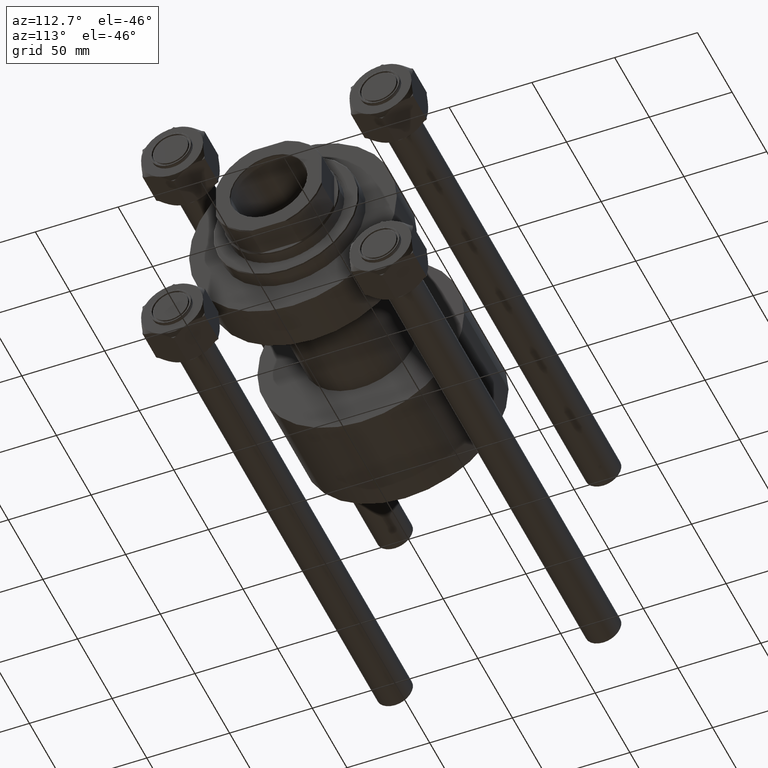
[diagram: clean part render]
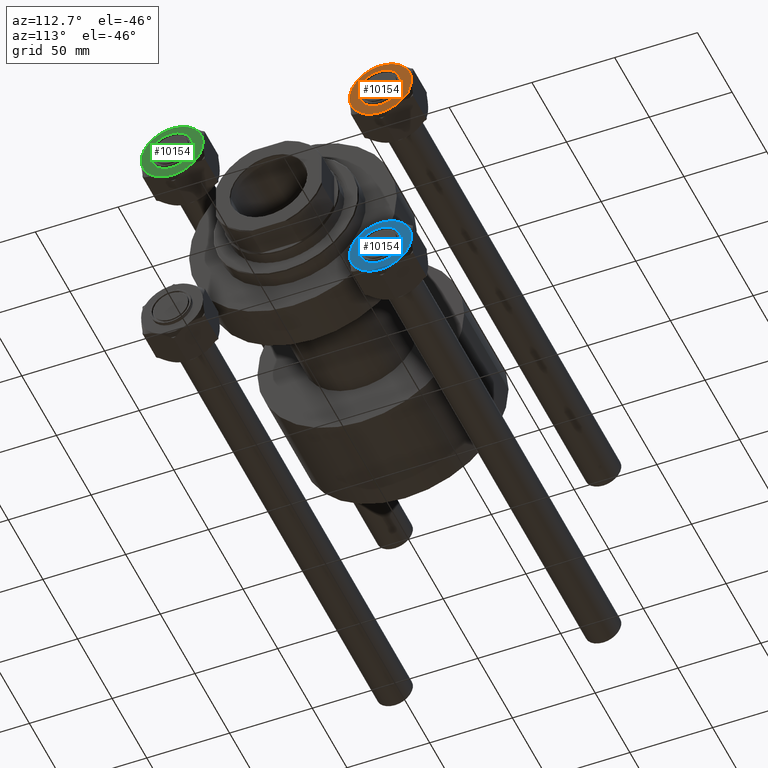
[diagram: same view with three faces highlighted in distinct colors, each labeled with its STEP entity id]
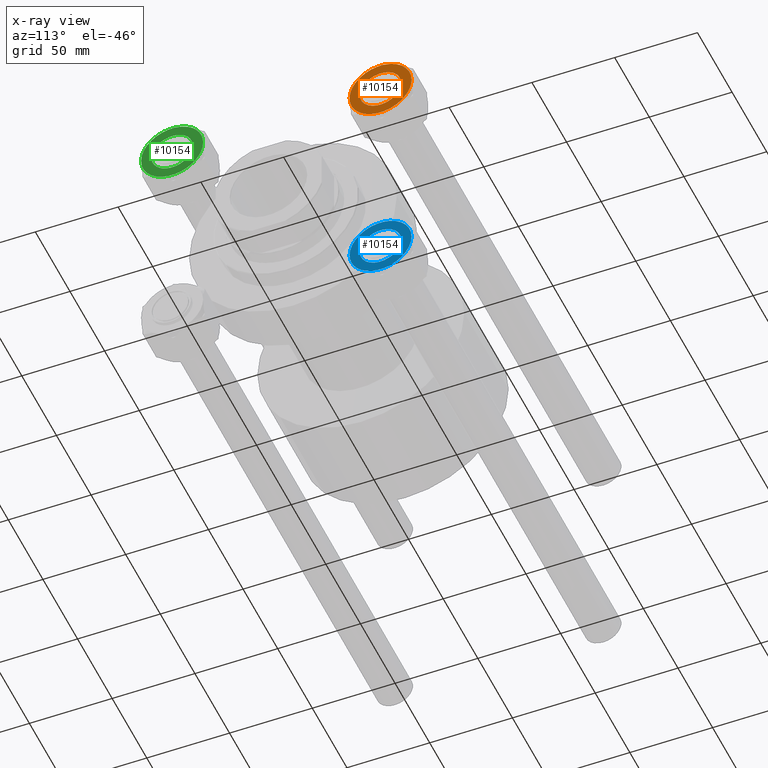
[diagram: x-ray of the same camera — body ghosted, the three highlighted faces saturated]
A machine part, auxiliary view with three faces highlighted in distinct colors.
The next image is the same camera in x-ray (body ghosted, the three faces saturated) — at least one of them is partly hidden behind the body in this view.
Their STEP definitions:

[orange] entity #10154 — the highlighted planar face has unit normal (-1, 0, 0).
#877 = CARTESIAN_POINT ( 'NONE',  ( 0.000000000000000000, 0.000000000000000000, 0.000000000000000000 ) ) ;
#1263 = EDGE_CURVE ( 'NONE', #3469, #21118, #34073, .T. ) ;
#1433 = CIRCLE ( 'NONE', #7959, 12.50000000000000000 ) ;
#1690 = CARTESIAN_POINT ( 'NONE',  ( 16.21499999999998920, 9.361734614909789087, 0.000000000000000000 ) ) ;
#2968 = AXIS2_PLACEMENT_3D ( 'NONE', #877, #24531, #4944 ) ;
#3469 = VERTEX_POINT ( 'NONE', #1690 ) ;
#4842 = EDGE_CURVE ( 'NONE', #11586, #34669, #24452, .T. ) ;
#4944 = DIRECTION ( 'NONE',  ( -1.000000000000000000, 0.000000000000000000, 0.000000000000000000 ) ) ;
#5284 = CIRCLE ( 'NONE', #36156, 18.72346922981956041 ) ;
#5495 = DIRECTION ( 'NONE',  ( 0.000000000000000000, -0.000000000000000000, -1.000000000000000000 ) ) ;
#6536 = VERTEX_POINT ( 'NONE', #19811 ) ;
#7544 = AXIS2_PLACEMENT_3D ( 'NONE', #37399, #9668, #40942 ) ;
#7959 = AXIS2_PLACEMENT_3D ( 'NONE', #48858, #29807, #45303 ) ;
#8434 = DIRECTION ( 'NONE',  ( 0.000000000000000000, -0.000000000000000000, -1.000000000000000000 ) ) ;
#8527 = ORIENTED_EDGE ( 'NONE', *, *, #1263, .T. ) ;
#8643 = CARTESIAN_POINT ( 'NONE',  ( 16.21500000000000341, -9.361734614909767771, 0.000000000000000000 ) ) ;
#8710 = AXIS2_PLACEMENT_3D ( 'NONE', #42723, #5495, #35363 ) ;
#8754 = EDGE_CURVE ( 'NONE', #20239, #39843, #35132, .T. ) ;
#9384 = EDGE_CURVE ( 'NONE', #34669, #32379, #44059, .T. ) ;
#9456 = CIRCLE ( 'NONE', #2968, 18.72346922981956041 ) ;
#9642 = EDGE_LOOP ( 'NONE', ( #26492, #35241 ) ) ;
#9668 = DIRECTION ( 'NONE',  ( 0.000000000000000000, -0.000000000000000000, -1.000000000000000000 ) ) ;
#10154 = ADVANCED_FACE ( 'NONE', ( #28522, #47083 ), #39469, .F. ) ;
#11468 = AXIS2_PLACEMENT_3D ( 'NONE', #21029, #46372, #15363 ) ;
#11586 = VERTEX_POINT ( 'NONE', #28429 ) ;
#12672 = CARTESIAN_POINT ( 'NONE',  ( -16.21499999999999275, -9.361734614909785535, 0.000000000000000000 ) ) ;
#13321 = EDGE_CURVE ( 'NONE', #3469, #6536, #48987, .T. ) ;
#15363 = DIRECTION ( 'NONE',  ( -1.000000000000000000, 0.000000000000000000, 0.000000000000000000 ) ) ;
#17994 = DIRECTION ( 'NONE',  ( 0.000000000000000000, 0.000000000000000000, 1.000000000000000000 ) ) ;
#19249 = DIRECTION ( 'NONE',  ( 1.000000000000000000, 0.000000000000000000, 0.000000000000000000 ) ) ;
#19811 = CARTESIAN_POINT ( 'NONE',  ( 18.72346922981956041, 0.000000000000000000, 0.000000000000000000 ) ) ;
#20239 = VERTEX_POINT ( 'NONE', #26939 ) ;
#20646 = EDGE_CURVE ( 'NONE', #32379, #21118, #5284, .T. ) ;
#20996 = ORIENTED_EDGE ( 'NONE', *, *, #20646, .F. ) ;
#21029 = CARTESIAN_POINT ( 'NONE',  ( 0.000000000000000000, 0.000000000000000000, 0.000000000000000000 ) ) ;
#21118 = VERTEX_POINT ( 'NONE', #29550 ) ;
#22572 = EDGE_LOOP ( 'NONE', ( #20996, #31131, #37670, #25218, #34127, #29165, #8527 ) ) ;
#24303 = EDGE_CURVE ( 'NONE', #45589, #11586, #9456, .T. ) ;
#24452 = CIRCLE ( 'NONE', #11468, 18.72346922981956041 ) ;
#24531 = DIRECTION ( 'NONE',  ( 0.000000000000000000, -0.000000000000000000, -1.000000000000000000 ) ) ;
#24824 = EDGE_CURVE ( 'NONE', #6536, #45589, #48460, .T. ) ;
#25218 = ORIENTED_EDGE ( 'NONE', *, *, #24303, .F. ) ;
#26137 = DIRECTION ( 'NONE',  ( 1.000000000000000000, 0.000000000000000000, 0.000000000000000000 ) ) ;
#26197 = AXIS2_PLACEMENT_3D ( 'NONE', #44673, #17994, #26137 ) ;
#26492 = ORIENTED_EDGE ( 'NONE', *, *, #28194, .F. ) ;
#26939 = CARTESIAN_POINT ( 'NONE',  ( 12.50000000000000000, 1.530808498934191521E-15, 0.000000000000000000 ) ) ;
#27046 = AXIS2_PLACEMENT_3D ( 'NONE', #39711, #43017, #44010 ) ;
#27389 = DIRECTION ( 'NONE',  ( 0.000000000000000000, 0.000000000000000000, 1.000000000000000000 ) ) ;
#28194 = EDGE_CURVE ( 'NONE', #39843, #20239, #1433, .T. ) ;
#28207 = CARTESIAN_POINT ( 'NONE',  ( -12.50000000000000000, 0.000000000000000000, 0.000000000000000000 ) ) ;
#28429 = CARTESIAN_POINT ( 'NONE',  ( 1.802777518484590916E-14, -18.72346922981956041, 0.000000000000000000 ) ) ;
#28522 = FACE_BOUND ( 'NONE', #9642, .T. ) ;
#29165 = ORIENTED_EDGE ( 'NONE', *, *, #13321, .F. ) ;
#29550 = CARTESIAN_POINT ( 'NONE',  ( -1.502314598737160570E-14, 18.72346922981957817, 0.000000000000000000 ) ) ;
#29807 = DIRECTION ( 'NONE',  ( 0.000000000000000000, 0.000000000000000000, 1.000000000000000000 ) ) ;
#30685 = DIRECTION ( 'NONE',  ( 0.000000000000000000, -0.000000000000000000, -1.000000000000000000 ) ) ;
#31131 = ORIENTED_EDGE ( 'NONE', *, *, #9384, .F. ) ;
#31576 = CARTESIAN_POINT ( 'NONE',  ( 0.000000000000000000, 0.000000000000000000, 0.000000000000000000 ) ) ;
#31705 = CARTESIAN_POINT ( 'NONE',  ( 0.000000000000000000, 0.000000000000000000, 0.000000000000000000 ) ) ;
#32379 = VERTEX_POINT ( 'NONE', #49227 ) ;
#32424 = AXIS2_PLACEMENT_3D ( 'NONE', #31705, #27389, #19249 ) ;
#34073 = CIRCLE ( 'NONE', #32424, 18.72346922981956041 ) ;
#34127 = ORIENTED_EDGE ( 'NONE', *, *, #24824, .F. ) ;
#34669 = VERTEX_POINT ( 'NONE', #12672 ) ;
#35132 = CIRCLE ( 'NONE', #26197, 12.50000000000000000 ) ;
#35241 = ORIENTED_EDGE ( 'NONE', *, *, #8754, .F. ) ;
#35363 = DIRECTION ( 'NONE',  ( -1.000000000000000000, 0.000000000000000000, 0.000000000000000000 ) ) ;
#36156 = AXIS2_PLACEMENT_3D ( 'NONE', #46677, #30685, #42861 ) ;
#37399 = CARTESIAN_POINT ( 'NONE',  ( 0.000000000000000000, 0.000000000000000000, 0.000000000000000000 ) ) ;
#37670 = ORIENTED_EDGE ( 'NONE', *, *, #4842, .F. ) ;
#39469 = PLANE ( 'NONE',  #27046 ) ;
#39711 = CARTESIAN_POINT ( 'NONE',  ( 0.000000000000000000, 0.000000000000000000, 0.000000000000000000 ) ) ;
#39843 = VERTEX_POINT ( 'NONE', #28207 ) ;
#40942 = DIRECTION ( 'NONE',  ( -1.000000000000000000, 0.000000000000000000, 0.000000000000000000 ) ) ;
#42723 = CARTESIAN_POINT ( 'NONE',  ( 0.000000000000000000, 0.000000000000000000, 0.000000000000000000 ) ) ;
#42861 = DIRECTION ( 'NONE',  ( -1.000000000000000000, 0.000000000000000000, 0.000000000000000000 ) ) ;
#43017 = DIRECTION ( 'NONE',  ( 0.000000000000000000, 0.000000000000000000, -1.000000000000000000 ) ) ;
#44010 = DIRECTION ( 'NONE',  ( -1.000000000000000000, 0.000000000000000000, -0.000000000000000000 ) ) ;
#44059 = CIRCLE ( 'NONE', #7544, 18.72346922981956041 ) ;
#44673 = CARTESIAN_POINT ( 'NONE',  ( 0.000000000000000000, 0.000000000000000000, 0.000000000000000000 ) ) ;
#45303 = DIRECTION ( 'NONE',  ( 1.000000000000000000, 0.000000000000000000, 0.000000000000000000 ) ) ;
#45589 = VERTEX_POINT ( 'NONE', #8643 ) ;
#46372 = DIRECTION ( 'NONE',  ( 0.000000000000000000, -0.000000000000000000, -1.000000000000000000 ) ) ;
#46677 = CARTESIAN_POINT ( 'NONE',  ( 0.000000000000000000, 0.000000000000000000, 0.000000000000000000 ) ) ;
#47068 = DIRECTION ( 'NONE',  ( -1.000000000000000000, 0.000000000000000000, 0.000000000000000000 ) ) ;
#47083 = FACE_OUTER_BOUND ( 'NONE', #22572, .T. ) ;
#48460 = CIRCLE ( 'NONE', #8710, 18.72346922981956041 ) ;
#48858 = CARTESIAN_POINT ( 'NONE',  ( 0.000000000000000000, 0.000000000000000000, 0.000000000000000000 ) ) ;
#48987 = CIRCLE ( 'NONE', #49846, 18.72346922981956041 ) ;
#49227 = CARTESIAN_POINT ( 'NONE',  ( -16.21499999999999986, 9.361734614909769547, 0.000000000000000000 ) ) ;
#49846 = AXIS2_PLACEMENT_3D ( 'NONE', #31576, #8434, #47068 ) ;

[blue] entity #10154 — the highlighted planar face has unit normal (-1, 0, -0).
#877 = CARTESIAN_POINT ( 'NONE',  ( 0.000000000000000000, 0.000000000000000000, 0.000000000000000000 ) ) ;
#1263 = EDGE_CURVE ( 'NONE', #3469, #21118, #34073, .T. ) ;
#1433 = CIRCLE ( 'NONE', #7959, 12.50000000000000000 ) ;
#1690 = CARTESIAN_POINT ( 'NONE',  ( 16.21499999999998920, 9.361734614909789087, 0.000000000000000000 ) ) ;
#2968 = AXIS2_PLACEMENT_3D ( 'NONE', #877, #24531, #4944 ) ;
#3469 = VERTEX_POINT ( 'NONE', #1690 ) ;
#4842 = EDGE_CURVE ( 'NONE', #11586, #34669, #24452, .T. ) ;
#4944 = DIRECTION ( 'NONE',  ( -1.000000000000000000, 0.000000000000000000, 0.000000000000000000 ) ) ;
#5284 = CIRCLE ( 'NONE', #36156, 18.72346922981956041 ) ;
#5495 = DIRECTION ( 'NONE',  ( 0.000000000000000000, -0.000000000000000000, -1.000000000000000000 ) ) ;
#6536 = VERTEX_POINT ( 'NONE', #19811 ) ;
#7544 = AXIS2_PLACEMENT_3D ( 'NONE', #37399, #9668, #40942 ) ;
#7959 = AXIS2_PLACEMENT_3D ( 'NONE', #48858, #29807, #45303 ) ;
#8434 = DIRECTION ( 'NONE',  ( 0.000000000000000000, -0.000000000000000000, -1.000000000000000000 ) ) ;
#8527 = ORIENTED_EDGE ( 'NONE', *, *, #1263, .T. ) ;
#8643 = CARTESIAN_POINT ( 'NONE',  ( 16.21500000000000341, -9.361734614909767771, 0.000000000000000000 ) ) ;
#8710 = AXIS2_PLACEMENT_3D ( 'NONE', #42723, #5495, #35363 ) ;
#8754 = EDGE_CURVE ( 'NONE', #20239, #39843, #35132, .T. ) ;
#9384 = EDGE_CURVE ( 'NONE', #34669, #32379, #44059, .T. ) ;
#9456 = CIRCLE ( 'NONE', #2968, 18.72346922981956041 ) ;
#9642 = EDGE_LOOP ( 'NONE', ( #26492, #35241 ) ) ;
#9668 = DIRECTION ( 'NONE',  ( 0.000000000000000000, -0.000000000000000000, -1.000000000000000000 ) ) ;
#10154 = ADVANCED_FACE ( 'NONE', ( #28522, #47083 ), #39469, .F. ) ;
#11468 = AXIS2_PLACEMENT_3D ( 'NONE', #21029, #46372, #15363 ) ;
#11586 = VERTEX_POINT ( 'NONE', #28429 ) ;
#12672 = CARTESIAN_POINT ( 'NONE',  ( -16.21499999999999275, -9.361734614909785535, 0.000000000000000000 ) ) ;
#13321 = EDGE_CURVE ( 'NONE', #3469, #6536, #48987, .T. ) ;
#15363 = DIRECTION ( 'NONE',  ( -1.000000000000000000, 0.000000000000000000, 0.000000000000000000 ) ) ;
#17994 = DIRECTION ( 'NONE',  ( 0.000000000000000000, 0.000000000000000000, 1.000000000000000000 ) ) ;
#19249 = DIRECTION ( 'NONE',  ( 1.000000000000000000, 0.000000000000000000, 0.000000000000000000 ) ) ;
#19811 = CARTESIAN_POINT ( 'NONE',  ( 18.72346922981956041, 0.000000000000000000, 0.000000000000000000 ) ) ;
#20239 = VERTEX_POINT ( 'NONE', #26939 ) ;
#20646 = EDGE_CURVE ( 'NONE', #32379, #21118, #5284, .T. ) ;
#20996 = ORIENTED_EDGE ( 'NONE', *, *, #20646, .F. ) ;
#21029 = CARTESIAN_POINT ( 'NONE',  ( 0.000000000000000000, 0.000000000000000000, 0.000000000000000000 ) ) ;
#21118 = VERTEX_POINT ( 'NONE', #29550 ) ;
#22572 = EDGE_LOOP ( 'NONE', ( #20996, #31131, #37670, #25218, #34127, #29165, #8527 ) ) ;
#24303 = EDGE_CURVE ( 'NONE', #45589, #11586, #9456, .T. ) ;
#24452 = CIRCLE ( 'NONE', #11468, 18.72346922981956041 ) ;
#24531 = DIRECTION ( 'NONE',  ( 0.000000000000000000, -0.000000000000000000, -1.000000000000000000 ) ) ;
#24824 = EDGE_CURVE ( 'NONE', #6536, #45589, #48460, .T. ) ;
#25218 = ORIENTED_EDGE ( 'NONE', *, *, #24303, .F. ) ;
#26137 = DIRECTION ( 'NONE',  ( 1.000000000000000000, 0.000000000000000000, 0.000000000000000000 ) ) ;
#26197 = AXIS2_PLACEMENT_3D ( 'NONE', #44673, #17994, #26137 ) ;
#26492 = ORIENTED_EDGE ( 'NONE', *, *, #28194, .F. ) ;
#26939 = CARTESIAN_POINT ( 'NONE',  ( 12.50000000000000000, 1.530808498934191521E-15, 0.000000000000000000 ) ) ;
#27046 = AXIS2_PLACEMENT_3D ( 'NONE', #39711, #43017, #44010 ) ;
#27389 = DIRECTION ( 'NONE',  ( 0.000000000000000000, 0.000000000000000000, 1.000000000000000000 ) ) ;
#28194 = EDGE_CURVE ( 'NONE', #39843, #20239, #1433, .T. ) ;
#28207 = CARTESIAN_POINT ( 'NONE',  ( -12.50000000000000000, 0.000000000000000000, 0.000000000000000000 ) ) ;
#28429 = CARTESIAN_POINT ( 'NONE',  ( 1.802777518484590916E-14, -18.72346922981956041, 0.000000000000000000 ) ) ;
#28522 = FACE_BOUND ( 'NONE', #9642, .T. ) ;
#29165 = ORIENTED_EDGE ( 'NONE', *, *, #13321, .F. ) ;
#29550 = CARTESIAN_POINT ( 'NONE',  ( -1.502314598737160570E-14, 18.72346922981957817, 0.000000000000000000 ) ) ;
#29807 = DIRECTION ( 'NONE',  ( 0.000000000000000000, 0.000000000000000000, 1.000000000000000000 ) ) ;
#30685 = DIRECTION ( 'NONE',  ( 0.000000000000000000, -0.000000000000000000, -1.000000000000000000 ) ) ;
#31131 = ORIENTED_EDGE ( 'NONE', *, *, #9384, .F. ) ;
#31576 = CARTESIAN_POINT ( 'NONE',  ( 0.000000000000000000, 0.000000000000000000, 0.000000000000000000 ) ) ;
#31705 = CARTESIAN_POINT ( 'NONE',  ( 0.000000000000000000, 0.000000000000000000, 0.000000000000000000 ) ) ;
#32379 = VERTEX_POINT ( 'NONE', #49227 ) ;
#32424 = AXIS2_PLACEMENT_3D ( 'NONE', #31705, #27389, #19249 ) ;
#34073 = CIRCLE ( 'NONE', #32424, 18.72346922981956041 ) ;
#34127 = ORIENTED_EDGE ( 'NONE', *, *, #24824, .F. ) ;
#34669 = VERTEX_POINT ( 'NONE', #12672 ) ;
#35132 = CIRCLE ( 'NONE', #26197, 12.50000000000000000 ) ;
#35241 = ORIENTED_EDGE ( 'NONE', *, *, #8754, .F. ) ;
#35363 = DIRECTION ( 'NONE',  ( -1.000000000000000000, 0.000000000000000000, 0.000000000000000000 ) ) ;
#36156 = AXIS2_PLACEMENT_3D ( 'NONE', #46677, #30685, #42861 ) ;
#37399 = CARTESIAN_POINT ( 'NONE',  ( 0.000000000000000000, 0.000000000000000000, 0.000000000000000000 ) ) ;
#37670 = ORIENTED_EDGE ( 'NONE', *, *, #4842, .F. ) ;
#39469 = PLANE ( 'NONE',  #27046 ) ;
#39711 = CARTESIAN_POINT ( 'NONE',  ( 0.000000000000000000, 0.000000000000000000, 0.000000000000000000 ) ) ;
#39843 = VERTEX_POINT ( 'NONE', #28207 ) ;
#40942 = DIRECTION ( 'NONE',  ( -1.000000000000000000, 0.000000000000000000, 0.000000000000000000 ) ) ;
#42723 = CARTESIAN_POINT ( 'NONE',  ( 0.000000000000000000, 0.000000000000000000, 0.000000000000000000 ) ) ;
#42861 = DIRECTION ( 'NONE',  ( -1.000000000000000000, 0.000000000000000000, 0.000000000000000000 ) ) ;
#43017 = DIRECTION ( 'NONE',  ( 0.000000000000000000, 0.000000000000000000, -1.000000000000000000 ) ) ;
#44010 = DIRECTION ( 'NONE',  ( -1.000000000000000000, 0.000000000000000000, -0.000000000000000000 ) ) ;
#44059 = CIRCLE ( 'NONE', #7544, 18.72346922981956041 ) ;
#44673 = CARTESIAN_POINT ( 'NONE',  ( 0.000000000000000000, 0.000000000000000000, 0.000000000000000000 ) ) ;
#45303 = DIRECTION ( 'NONE',  ( 1.000000000000000000, 0.000000000000000000, 0.000000000000000000 ) ) ;
#45589 = VERTEX_POINT ( 'NONE', #8643 ) ;
#46372 = DIRECTION ( 'NONE',  ( 0.000000000000000000, -0.000000000000000000, -1.000000000000000000 ) ) ;
#46677 = CARTESIAN_POINT ( 'NONE',  ( 0.000000000000000000, 0.000000000000000000, 0.000000000000000000 ) ) ;
#47068 = DIRECTION ( 'NONE',  ( -1.000000000000000000, 0.000000000000000000, 0.000000000000000000 ) ) ;
#47083 = FACE_OUTER_BOUND ( 'NONE', #22572, .T. ) ;
#48460 = CIRCLE ( 'NONE', #8710, 18.72346922981956041 ) ;
#48858 = CARTESIAN_POINT ( 'NONE',  ( 0.000000000000000000, 0.000000000000000000, 0.000000000000000000 ) ) ;
#48987 = CIRCLE ( 'NONE', #49846, 18.72346922981956041 ) ;
#49227 = CARTESIAN_POINT ( 'NONE',  ( -16.21499999999999986, 9.361734614909769547, 0.000000000000000000 ) ) ;
#49846 = AXIS2_PLACEMENT_3D ( 'NONE', #31576, #8434, #47068 ) ;

[green] entity #10154 — the highlighted planar face has unit normal (-1, -0, 0).
#877 = CARTESIAN_POINT ( 'NONE',  ( 0.000000000000000000, 0.000000000000000000, 0.000000000000000000 ) ) ;
#1263 = EDGE_CURVE ( 'NONE', #3469, #21118, #34073, .T. ) ;
#1433 = CIRCLE ( 'NONE', #7959, 12.50000000000000000 ) ;
#1690 = CARTESIAN_POINT ( 'NONE',  ( 16.21499999999998920, 9.361734614909789087, 0.000000000000000000 ) ) ;
#2968 = AXIS2_PLACEMENT_3D ( 'NONE', #877, #24531, #4944 ) ;
#3469 = VERTEX_POINT ( 'NONE', #1690 ) ;
#4842 = EDGE_CURVE ( 'NONE', #11586, #34669, #24452, .T. ) ;
#4944 = DIRECTION ( 'NONE',  ( -1.000000000000000000, 0.000000000000000000, 0.000000000000000000 ) ) ;
#5284 = CIRCLE ( 'NONE', #36156, 18.72346922981956041 ) ;
#5495 = DIRECTION ( 'NONE',  ( 0.000000000000000000, -0.000000000000000000, -1.000000000000000000 ) ) ;
#6536 = VERTEX_POINT ( 'NONE', #19811 ) ;
#7544 = AXIS2_PLACEMENT_3D ( 'NONE', #37399, #9668, #40942 ) ;
#7959 = AXIS2_PLACEMENT_3D ( 'NONE', #48858, #29807, #45303 ) ;
#8434 = DIRECTION ( 'NONE',  ( 0.000000000000000000, -0.000000000000000000, -1.000000000000000000 ) ) ;
#8527 = ORIENTED_EDGE ( 'NONE', *, *, #1263, .T. ) ;
#8643 = CARTESIAN_POINT ( 'NONE',  ( 16.21500000000000341, -9.361734614909767771, 0.000000000000000000 ) ) ;
#8710 = AXIS2_PLACEMENT_3D ( 'NONE', #42723, #5495, #35363 ) ;
#8754 = EDGE_CURVE ( 'NONE', #20239, #39843, #35132, .T. ) ;
#9384 = EDGE_CURVE ( 'NONE', #34669, #32379, #44059, .T. ) ;
#9456 = CIRCLE ( 'NONE', #2968, 18.72346922981956041 ) ;
#9642 = EDGE_LOOP ( 'NONE', ( #26492, #35241 ) ) ;
#9668 = DIRECTION ( 'NONE',  ( 0.000000000000000000, -0.000000000000000000, -1.000000000000000000 ) ) ;
#10154 = ADVANCED_FACE ( 'NONE', ( #28522, #47083 ), #39469, .F. ) ;
#11468 = AXIS2_PLACEMENT_3D ( 'NONE', #21029, #46372, #15363 ) ;
#11586 = VERTEX_POINT ( 'NONE', #28429 ) ;
#12672 = CARTESIAN_POINT ( 'NONE',  ( -16.21499999999999275, -9.361734614909785535, 0.000000000000000000 ) ) ;
#13321 = EDGE_CURVE ( 'NONE', #3469, #6536, #48987, .T. ) ;
#15363 = DIRECTION ( 'NONE',  ( -1.000000000000000000, 0.000000000000000000, 0.000000000000000000 ) ) ;
#17994 = DIRECTION ( 'NONE',  ( 0.000000000000000000, 0.000000000000000000, 1.000000000000000000 ) ) ;
#19249 = DIRECTION ( 'NONE',  ( 1.000000000000000000, 0.000000000000000000, 0.000000000000000000 ) ) ;
#19811 = CARTESIAN_POINT ( 'NONE',  ( 18.72346922981956041, 0.000000000000000000, 0.000000000000000000 ) ) ;
#20239 = VERTEX_POINT ( 'NONE', #26939 ) ;
#20646 = EDGE_CURVE ( 'NONE', #32379, #21118, #5284, .T. ) ;
#20996 = ORIENTED_EDGE ( 'NONE', *, *, #20646, .F. ) ;
#21029 = CARTESIAN_POINT ( 'NONE',  ( 0.000000000000000000, 0.000000000000000000, 0.000000000000000000 ) ) ;
#21118 = VERTEX_POINT ( 'NONE', #29550 ) ;
#22572 = EDGE_LOOP ( 'NONE', ( #20996, #31131, #37670, #25218, #34127, #29165, #8527 ) ) ;
#24303 = EDGE_CURVE ( 'NONE', #45589, #11586, #9456, .T. ) ;
#24452 = CIRCLE ( 'NONE', #11468, 18.72346922981956041 ) ;
#24531 = DIRECTION ( 'NONE',  ( 0.000000000000000000, -0.000000000000000000, -1.000000000000000000 ) ) ;
#24824 = EDGE_CURVE ( 'NONE', #6536, #45589, #48460, .T. ) ;
#25218 = ORIENTED_EDGE ( 'NONE', *, *, #24303, .F. ) ;
#26137 = DIRECTION ( 'NONE',  ( 1.000000000000000000, 0.000000000000000000, 0.000000000000000000 ) ) ;
#26197 = AXIS2_PLACEMENT_3D ( 'NONE', #44673, #17994, #26137 ) ;
#26492 = ORIENTED_EDGE ( 'NONE', *, *, #28194, .F. ) ;
#26939 = CARTESIAN_POINT ( 'NONE',  ( 12.50000000000000000, 1.530808498934191521E-15, 0.000000000000000000 ) ) ;
#27046 = AXIS2_PLACEMENT_3D ( 'NONE', #39711, #43017, #44010 ) ;
#27389 = DIRECTION ( 'NONE',  ( 0.000000000000000000, 0.000000000000000000, 1.000000000000000000 ) ) ;
#28194 = EDGE_CURVE ( 'NONE', #39843, #20239, #1433, .T. ) ;
#28207 = CARTESIAN_POINT ( 'NONE',  ( -12.50000000000000000, 0.000000000000000000, 0.000000000000000000 ) ) ;
#28429 = CARTESIAN_POINT ( 'NONE',  ( 1.802777518484590916E-14, -18.72346922981956041, 0.000000000000000000 ) ) ;
#28522 = FACE_BOUND ( 'NONE', #9642, .T. ) ;
#29165 = ORIENTED_EDGE ( 'NONE', *, *, #13321, .F. ) ;
#29550 = CARTESIAN_POINT ( 'NONE',  ( -1.502314598737160570E-14, 18.72346922981957817, 0.000000000000000000 ) ) ;
#29807 = DIRECTION ( 'NONE',  ( 0.000000000000000000, 0.000000000000000000, 1.000000000000000000 ) ) ;
#30685 = DIRECTION ( 'NONE',  ( 0.000000000000000000, -0.000000000000000000, -1.000000000000000000 ) ) ;
#31131 = ORIENTED_EDGE ( 'NONE', *, *, #9384, .F. ) ;
#31576 = CARTESIAN_POINT ( 'NONE',  ( 0.000000000000000000, 0.000000000000000000, 0.000000000000000000 ) ) ;
#31705 = CARTESIAN_POINT ( 'NONE',  ( 0.000000000000000000, 0.000000000000000000, 0.000000000000000000 ) ) ;
#32379 = VERTEX_POINT ( 'NONE', #49227 ) ;
#32424 = AXIS2_PLACEMENT_3D ( 'NONE', #31705, #27389, #19249 ) ;
#34073 = CIRCLE ( 'NONE', #32424, 18.72346922981956041 ) ;
#34127 = ORIENTED_EDGE ( 'NONE', *, *, #24824, .F. ) ;
#34669 = VERTEX_POINT ( 'NONE', #12672 ) ;
#35132 = CIRCLE ( 'NONE', #26197, 12.50000000000000000 ) ;
#35241 = ORIENTED_EDGE ( 'NONE', *, *, #8754, .F. ) ;
#35363 = DIRECTION ( 'NONE',  ( -1.000000000000000000, 0.000000000000000000, 0.000000000000000000 ) ) ;
#36156 = AXIS2_PLACEMENT_3D ( 'NONE', #46677, #30685, #42861 ) ;
#37399 = CARTESIAN_POINT ( 'NONE',  ( 0.000000000000000000, 0.000000000000000000, 0.000000000000000000 ) ) ;
#37670 = ORIENTED_EDGE ( 'NONE', *, *, #4842, .F. ) ;
#39469 = PLANE ( 'NONE',  #27046 ) ;
#39711 = CARTESIAN_POINT ( 'NONE',  ( 0.000000000000000000, 0.000000000000000000, 0.000000000000000000 ) ) ;
#39843 = VERTEX_POINT ( 'NONE', #28207 ) ;
#40942 = DIRECTION ( 'NONE',  ( -1.000000000000000000, 0.000000000000000000, 0.000000000000000000 ) ) ;
#42723 = CARTESIAN_POINT ( 'NONE',  ( 0.000000000000000000, 0.000000000000000000, 0.000000000000000000 ) ) ;
#42861 = DIRECTION ( 'NONE',  ( -1.000000000000000000, 0.000000000000000000, 0.000000000000000000 ) ) ;
#43017 = DIRECTION ( 'NONE',  ( 0.000000000000000000, 0.000000000000000000, -1.000000000000000000 ) ) ;
#44010 = DIRECTION ( 'NONE',  ( -1.000000000000000000, 0.000000000000000000, -0.000000000000000000 ) ) ;
#44059 = CIRCLE ( 'NONE', #7544, 18.72346922981956041 ) ;
#44673 = CARTESIAN_POINT ( 'NONE',  ( 0.000000000000000000, 0.000000000000000000, 0.000000000000000000 ) ) ;
#45303 = DIRECTION ( 'NONE',  ( 1.000000000000000000, 0.000000000000000000, 0.000000000000000000 ) ) ;
#45589 = VERTEX_POINT ( 'NONE', #8643 ) ;
#46372 = DIRECTION ( 'NONE',  ( 0.000000000000000000, -0.000000000000000000, -1.000000000000000000 ) ) ;
#46677 = CARTESIAN_POINT ( 'NONE',  ( 0.000000000000000000, 0.000000000000000000, 0.000000000000000000 ) ) ;
#47068 = DIRECTION ( 'NONE',  ( -1.000000000000000000, 0.000000000000000000, 0.000000000000000000 ) ) ;
#47083 = FACE_OUTER_BOUND ( 'NONE', #22572, .T. ) ;
#48460 = CIRCLE ( 'NONE', #8710, 18.72346922981956041 ) ;
#48858 = CARTESIAN_POINT ( 'NONE',  ( 0.000000000000000000, 0.000000000000000000, 0.000000000000000000 ) ) ;
#48987 = CIRCLE ( 'NONE', #49846, 18.72346922981956041 ) ;
#49227 = CARTESIAN_POINT ( 'NONE',  ( -16.21499999999999986, 9.361734614909769547, 0.000000000000000000 ) ) ;
#49846 = AXIS2_PLACEMENT_3D ( 'NONE', #31576, #8434, #47068 ) ;